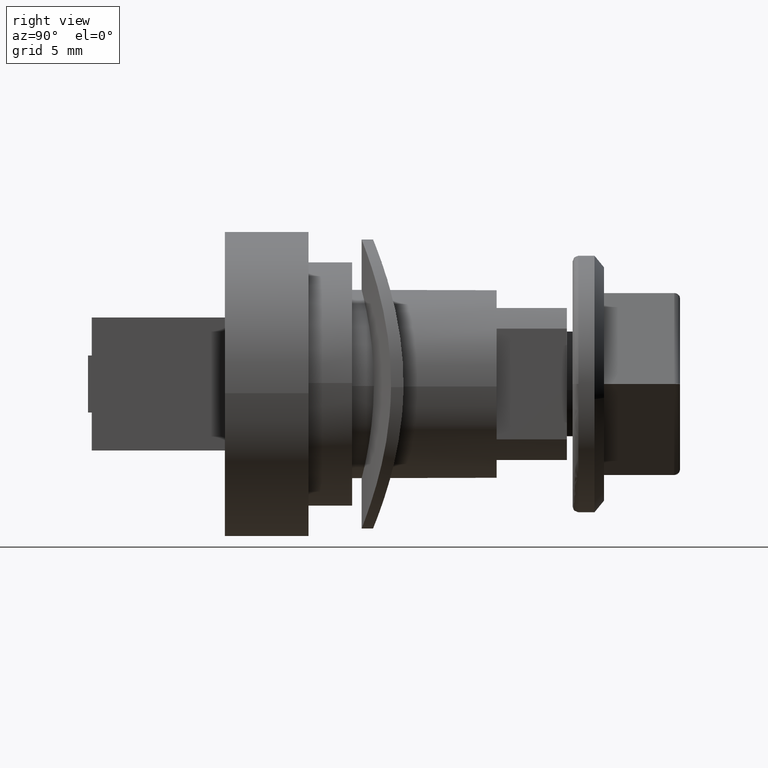
[diagram: clean part render]
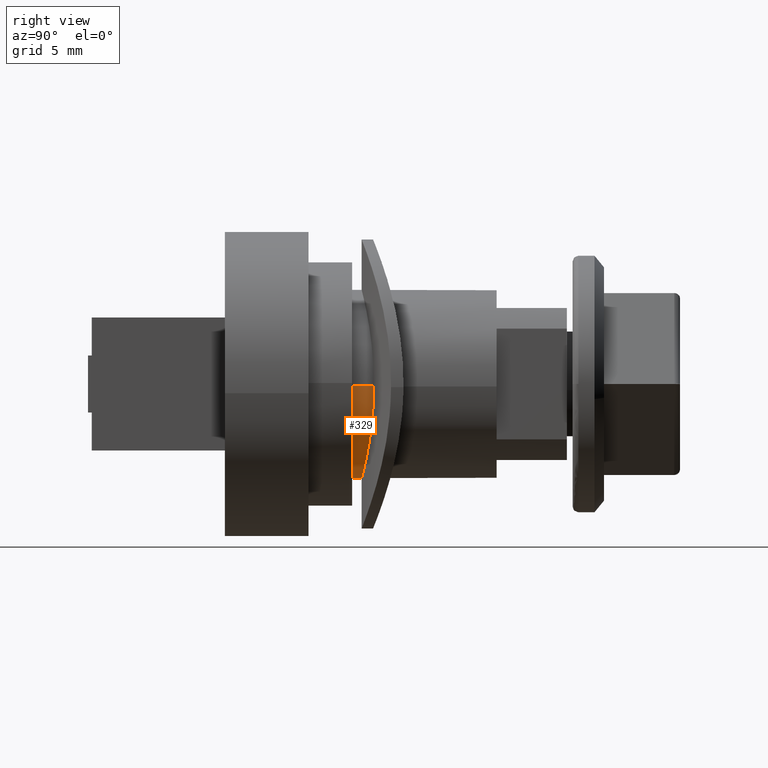
[diagram: same view with one face highlighted and labeled with its STEP entity id]
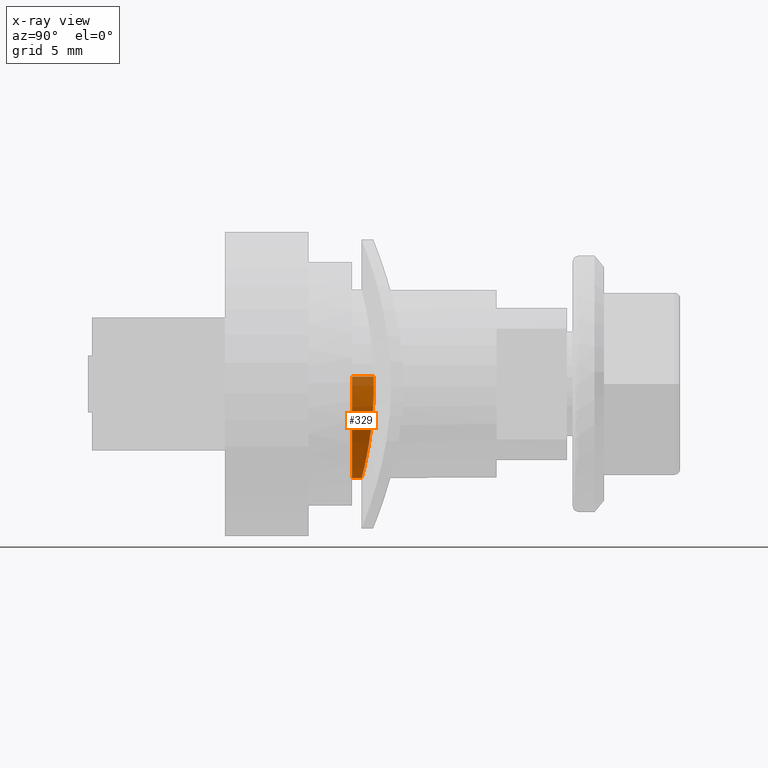
[diagram: x-ray of the same camera — body ghosted, the highlighted face saturated]
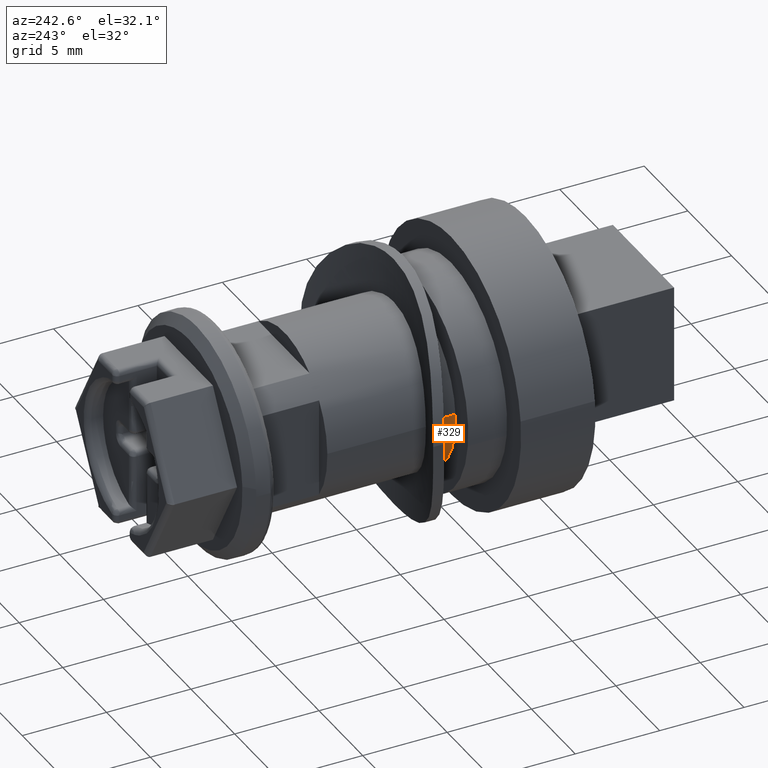
[diagram: same view with one face highlighted and labeled with its STEP entity id]
A machine part, right view. The second image highlights one B-rep face of the part: STEP entity #329.
The next image is the same camera in x-ray: the body ghosted, the highlighted face saturated — about 11% of this face is hidden behind the body in this view.
A second angle (auxiliary view) of the same face is appended — the face is thin or edge-on in the first view.
In plain terms, the highlighted face is a freeform B-spline surface patch.
Its self-contained STEP definition (entity closure, byte-faithful):
#66=CARTESIAN_POINT('',(4.948879751987990,7.840132820452007,-0.105507748582724));
#67=VERTEX_POINT('',#66);
#111=CARTESIAN_POINT('',(-4.934741098341358,7.836418882127584,0.388372938903500));
#112=VERTEX_POINT('',#111);
#147=CARTESIAN_POINT('',(-4.934741544845656,6.700000499468420,0.388365689280583));
#148=VERTEX_POINT('',#147);
#149=CARTESIAN_POINT('',(-4.934741098341358,7.836418882127584,0.388372938903500));
#150=CARTESIAN_POINT('',(-4.934741544845656,6.700000499468420,0.388365689280583));
#151=QUASI_UNIFORM_CURVE('',1,(#149,#150),.UNSPECIFIED.,.F.,.U.);
#152=EDGE_CURVE('',#112,#148,#151,.T.);
#169=CARTESIAN_POINT('',(4.948875644084547,6.700000499468420,-0.105507661609170));
#170=VERTEX_POINT('',#169);
#186=CARTESIAN_POINT('',(4.948879751987990,7.840132820452007,-0.105507748582724));
#187=CARTESIAN_POINT('',(4.948875644084547,6.700000499468420,-0.105507661609170));
#188=QUASI_UNIFORM_CURVE('',1,(#186,#187),.UNSPECIFIED.,.F.,.U.);
#189=EDGE_CURVE('',#67,#170,#188,.T.);
#194=CARTESIAN_POINT('',(-4.934741004448805,7.868939549940374,0.388372555795754));
#195=CARTESIAN_POINT('',(-5.323113544236358,7.868939549940374,-4.546368448653050));
#196=CARTESIAN_POINT('',(-0.388372539787553,7.868939549940374,-4.934740988440604));
#197=CARTESIAN_POINT('',(4.546368464661252,7.868939549940374,-5.323113528228157));
#198=CARTESIAN_POINT('',(4.934741004448805,7.868939549940374,-0.388372523779352));
#199=CARTESIAN_POINT('',(4.945856059681396,7.868939549940374,-0.247142356340156));
#200=CARTESIAN_POINT('',(4.948875644085013,7.868939549940374,-0.105507661587223));
#201=CARTESIAN_POINT('',(-4.934741004448805,6.670777023206620,0.388372555795754));
#202=CARTESIAN_POINT('',(-5.323113544236358,6.670777023206619,-4.546368448653050));
#203=CARTESIAN_POINT('',(-0.388372539787553,6.670777023206620,-4.934740988440604));
#204=CARTESIAN_POINT('',(4.546368464661252,6.670777023206619,-5.323113528228157));
#205=CARTESIAN_POINT('',(4.934741004448805,6.670777023206620,-0.388372523779352));
#206=CARTESIAN_POINT('',(4.945856059681396,6.670777023206621,-0.247142356340156));
#207=CARTESIAN_POINT('',(4.948875644085013,6.670777023206621,-0.105507661587223));
#215=(BOUNDED_SURFACE()B_SPLINE_SURFACE(2,1,((#194,#201),(#195,#202),(#196,#203),(#197,#204),(#198,#205),(#199,#206),(#200,#207)),.UNSPECIFIED.,.F.,.F.,.U.)B_SPLINE_SURFACE_WITH_KNOTS((3,2,2,3),(2,2),(0.0,8.201428871487584,16.402857742975169,16.730914897834669),(0.0,1.0),.UNSPECIFIED.)GEOMETRIC_REPRESENTATION_ITEM()RATIONAL_B_SPLINE_SURFACE(((1.0,1.0),(0.707106781186548,0.707106781186548),(1.0,1.0),(0.707106781186548,0.707106781186548),(1.0,1.0),(0.988284271247462,0.988284271247462),(0.977505800795127,0.977505800795127)))REPRESENTATION_ITEM('')SURFACE());
#216=CARTESIAN_POINT('',(3.469447E-015,7.200001048879778,-4.950000187087700));
#217=VERTEX_POINT('',#216);
#218=CARTESIAN_POINT('',(3.469447E-015,7.200001048879778,-4.950000187087700));
#219=CARTESIAN_POINT('',(0.328469322390882,7.200001051946416,-4.950000184164082));
#220=CARTESIAN_POINT('',(0.651186361076124,7.208310092701569,-4.917631996211043));
#221=CARTESIAN_POINT('',(1.127046273556041,7.232032864347804,-4.822699340928697));
#222=CARTESIAN_POINT('',(1.284287087908939,7.241819152131025,-4.783266448859985));
#223=CARTESIAN_POINT('',(1.518043629508847,7.259174701670452,-4.712183758851835));
#224=CARTESIAN_POINT('',(1.595822670054671,7.265424766988021,-4.686418273590834));
#225=CARTESIAN_POINT('',(1.749520263740760,7.278691695653523,-4.631235743708474));
#226=CARTESIAN_POINT('',(1.825360030860179,7.285698447724725,-4.601861663171032));
#227=CARTESIAN_POINT('',(2.199633413680910,7.322439784105366,-4.446263164758213));
#228=CARTESIAN_POINT('',(2.483432231929684,7.357291563609715,-4.294115003220459));
#229=CARTESIAN_POINT('',(2.819091563857814,7.405266322389038,-4.069611571913941));
#230=CARTESIAN_POINT('',(2.885260195626923,7.415081848157291,-4.022978763369827));
#231=CARTESIAN_POINT('',(3.015646155295823,7.435092239076290,-3.926189219946906));
#232=CARTESIAN_POINT('',(3.079951020418352,7.445303080880111,-3.875947425911513));
#233=CARTESIAN_POINT('',(3.267910595384365,7.476076739842373,-3.721498786285785));
#234=CARTESIAN_POINT('',(3.387276613232843,7.496876316013091,-3.613124954351290));
#235=CARTESIAN_POINT('',(3.728117441567501,7.559244428618020,-3.272144812780098));
#236=CARTESIAN_POINT('',(3.932510093656310,7.600798551115163,-3.023843482537438));
#237=CARTESIAN_POINT('',(4.158665890614484,7.649734676630124,-2.685998616401315));
#238=CARTESIAN_POINT('',(4.202369172696640,7.659361122049684,-2.617088059309142));
#239=CARTESIAN_POINT('',(4.285851807042136,7.678027383374624,-2.478009203674548));
#240=CARTESIAN_POINT('',(4.325758181275043,7.687094489531411,-2.407656077883575));
#241=CARTESIAN_POINT('',(4.440056074703568,7.713409617329643,-2.194182496689205));
#242=CARTESIAN_POINT('',(4.578022783960898,7.746132762091753,-1.903124327895381));
#243=CARTESIAN_POINT('',(4.687357750277739,7.773202180843800,-1.599216881362839));
#244=CARTESIAN_POINT('',(4.758382168762051,7.791027894064800,-1.366328784284797));
#245=CARTESIAN_POINT('',(4.780224103203285,7.796556931045028,-1.287871692742928));
#246=CARTESIAN_POINT('',(4.820158418011529,7.806727196905494,-1.129259821490513));
#247=CARTESIAN_POINT('',(4.838202994508427,7.811356321338146,-1.049239755093739));
#248=CARTESIAN_POINT('',(4.911297553313432,7.830194815634588,-0.683185796089200));
#249=CARTESIAN_POINT('',(4.942743819023358,7.838506897425968,-0.395249938556462));
#250=CARTESIAN_POINT('',(4.948879751987990,7.840132820452007,-0.105507748582724));
#251=B_SPLINE_CURVE_WITH_KNOTS('',3,(#218,#219,#220,#221,#222,#223,#224,#225,#226,#227,#228,#229,#230,#231,#232,#233,#234,#235,#236,#237,#238,#239,#240,#241,#242,#243,#244,#245,#246,#247,#248,#249,#250),.UNSPECIFIED.,.F.,.U.,(4,2,2,2,2,2,2,2,2,2,2,2,1,2,2,2,4),(0.0,0.031250000000000,0.046875000000000,0.054687500000000,0.062500000000000,0.093750000000000,0.101562500000000,0.109375000000000,0.125000000000000,0.156250000000000,0.164062500000000,0.171875000000000,0.187500000000000,0.203125000000000,0.210937500000001,0.218750000000001,0.246709679165166),.UNSPECIFIED.);
#252=EDGE_CURVE('',#217,#67,#251,.T.);
#253=ORIENTED_EDGE('',*,*,#252,.T.);
#254=ORIENTED_EDGE('',*,*,#189,.T.);
#255=CARTESIAN_POINT('',(0.0,6.700000499468420,-4.950000187087699));
#256=VERTEX_POINT('',#255);
#257=CARTESIAN_POINT('',(0.0,6.700000499468420,-4.950000187087699));
#258=CARTESIAN_POINT('',(4.845593364943977,6.700000499468419,-4.950000187087699));
#259=CARTESIAN_POINT('',(4.948875644084547,6.700000499468420,-0.105507661609170));
#267=(BOUNDED_CURVE()B_SPLINE_CURVE(2,(#257,#258,#259),.UNSPECIFIED.,.F.,.U.)B_SPLINE_CURVE_WITH_KNOTS((3,3),(0.0,0.246248196889300),.UNSPECIFIED.)CURVE()GEOMETRIC_REPRESENTATION_ITEM()RATIONAL_B_SPLINE_CURVE((1.0,0.711502291944336,0.991340907211896))REPRESENTATION_ITEM(''));
#268=EDGE_CURVE('',#256,#170,#267,.T.);
#269=ORIENTED_EDGE('',*,*,#268,.F.);
#270=CARTESIAN_POINT('',(-4.934741544845656,6.700000499468420,0.388365689280582));
#271=CARTESIAN_POINT('',(-4.950000203095900,6.700000499468422,0.194482604486046));
#272=CARTESIAN_POINT('',(-4.950000203095900,6.700000499468420,0.000000016008201));
#273=CARTESIAN_POINT('',(-4.950000203095900,6.700000499468420,-4.950000187087699));
#274=CARTESIAN_POINT('',(0.0,6.700000499468420,-4.950000187087699));
#282=(BOUNDED_CURVE()B_SPLINE_CURVE(2,(#270,#271,#272,#273,#274),.UNSPECIFIED.,.F.,.U.)B_SPLINE_CURVE_WITH_KNOTS((3,2,3),(0.736331539163834,0.750000000000000,1.0),.UNSPECIFIED.)CURVE()GEOMETRIC_REPRESENTATION_ITEM()RATIONAL_B_SPLINE_CURVE((0.969723853968488,0.983986402037879,1.0,0.707106781186547,1.0))REPRESENTATION_ITEM(''));
#283=EDGE_CURVE('',#148,#256,#282,.T.);
#284=ORIENTED_EDGE('',*,*,#283,.F.);
#285=ORIENTED_EDGE('',*,*,#152,.F.);
#286=CARTESIAN_POINT('',(-4.934741098341358,7.836418882127584,0.388372938903500));
#287=CARTESIAN_POINT('',(-4.938409030957431,7.837381763457548,0.341769828420682));
#288=CARTESIAN_POINT('',(-4.941423996453555,7.838173761147020,0.295018815004109));
#289=CARTESIAN_POINT('',(-4.947886177235371,7.839872087561557,0.166259343097573));
#290=CARTESIAN_POINT('',(-4.949958179070082,7.840417716013272,0.084140665942926));
#291=CARTESIAN_POINT('',(-4.950165118078001,7.840472174856946,-0.324014058145776));
#292=CARTESIAN_POINT('',(-4.918334177118426,7.832010886597785,-0.646227449429642));
#293=CARTESIAN_POINT('',(-4.839388322478115,7.811659901149162,-1.043739708577106));
#294=CARTESIAN_POINT('',(-4.821623291374485,7.807101178662049,-1.122977172826389));
#295=CARTESIAN_POINT('',(-4.782089735948513,7.797029286337829,-1.280916330949570));
#296=CARTESIAN_POINT('',(-4.760288315857897,7.791507834887980,-1.359725624803307));
#297=CARTESIAN_POINT('',(-4.688968065140123,7.773600656733677,-1.594636972664027));
#298=CARTESIAN_POINT('',(-4.634099789678418,7.760011961545143,-1.747494213592730));
#299=CARTESIAN_POINT('',(-4.448330879157332,7.715083661650825,-2.195293615907924));
#300=CARTESIAN_POINT('',(-4.296474012721994,7.679580034577121,-2.479564434850815));
#301=CARTESIAN_POINT('',(-4.071027439339085,7.630764163324676,-2.817059936074745));
#302=CARTESIAN_POINT('',(-4.024019378256146,7.620754693431689,-2.883810087770884));
#303=CARTESIAN_POINT('',(-3.927288315357358,7.600556044587856,-3.014216160595079));
#304=CARTESIAN_POINT('',(-3.877501014150832,7.590352089776580,-3.077985927487462));
#305=CARTESIAN_POINT('',(-3.723943642471309,7.559541332264331,-3.265085595141935));
#306=CARTESIAN_POINT('',(-3.615988551526867,7.538736219737809,-3.384216361573671));
#307=CARTESIAN_POINT('',(-3.389019823928718,7.497185054370029,-3.611486980795872));
#308=CARTESIAN_POINT('',(-3.270006305193462,7.476437979833189,-3.719626767038981));
#309=CARTESIAN_POINT('',(-3.083020080177445,7.445796272788456,-3.873500320057550));
#310=CARTESIAN_POINT('',(-3.019277714104157,7.435662228198296,-3.923399537582486));
#311=CARTESIAN_POINT('',(-2.888903449760784,7.415628411604953,-4.020365493489893));
#312=CARTESIAN_POINT('',(-2.822221414325389,7.405723816187779,-4.067449994241141));
#313=CARTESIAN_POINT('',(-2.485216287009179,7.357505679728148,-4.293192572812979));
#314=CARTESIAN_POINT('',(-2.201408964645697,7.322664658599874,-4.445275847572779));
#315=CARTESIAN_POINT('',(-1.754488618619128,7.278716136213159,-4.631448561743964));
#316=CARTESIAN_POINT('',(-1.601955382485384,7.265450808270834,-4.686462341888952));
#317=CARTESIAN_POINT('',(-1.367590666025375,7.247982240218006,-4.758032129538166));
#318=CARTESIAN_POINT('',(-1.288539481180827,7.242568075584039,-4.780044840996618));
#319=CARTESIAN_POINT('',(-1.130258595588082,7.232707109881305,-4.819925122065963));
#320=CARTESIAN_POINT('',(-1.050819121634262,7.228243825439765,-4.837860405266399));
#321=CARTESIAN_POINT('',(-0.652140312754762,7.208314078803996,-4.917622515945352));
#322=CARTESIAN_POINT('',(-0.328469460443104,7.200001045813142,-4.950000187087699));
#323=CARTESIAN_POINT('',(3.469447E-015,7.200001048879778,-4.950000187087700));
#324=B_SPLINE_CURVE_WITH_KNOTS('',3,(#286,#287,#288,#289,#290,#291,#292,#293,#294,#295,#296,#297,#298,#299,#300,#301,#302,#303,#304,#305,#306,#307,#308,#309,#310,#311,#312,#313,#314,#315,#316,#317,#318,#319,#320,#321,#322,#323),.UNSPECIFIED.,.F.,.U.,(4,2,2,2,2,2,2,2,2,2,2,2,2,2,2,2,2,2,4),(0.737711390997195,0.742187500000000,0.750000000000000,0.781250000000000,0.789062500000000,0.796875000000000,0.812500000000000,0.843750000000000,0.851562500000000,0.859375000000000,0.875000000000000,0.890625000000000,0.898437500000000,0.906250000000000,0.937500000000000,0.953125000000000,0.960937500000000,0.968750000000000,1.0),.UNSPECIFIED.);
#325=EDGE_CURVE('',#112,#217,#324,.T.);
#326=ORIENTED_EDGE('',*,*,#325,.T.);
#327=EDGE_LOOP('',(#253,#254,#269,#284,#285,#326));
#328=FACE_OUTER_BOUND('',#327,.T.);
#329=ADVANCED_FACE('',(#328),#215,.T.);